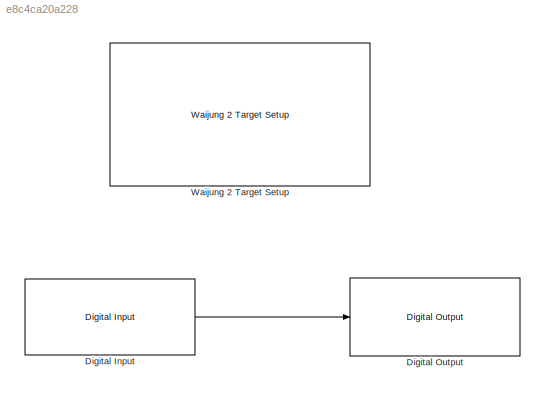
MODEL slx_e8c4ca20a228
KIND model
CONFIG AbsTol = auto
CONFIG EnableMultiTasking = on
CONFIG FixedStep = auto
CONFIG MaxStep = auto
CONFIG MinStep = auto
CONFIG RelTol = 1e-3
CONFIG SampleTimeConstraint = Unconstrained
CONFIG SolverName = FixedStepDiscrete
CONFIG StartTime = 0.0
CONFIG StopTime = 10.0
BLOCK [Reference] Digital Input  REF=esp32_io_lib/Digital Input
  Ports = [0, 1]
  SourceBlock = esp32_io_lib/Digital Input
  SourceProductName = Waijung 2 Blockset
  SourceType = esp32_digital_input
BLOCK [Reference] Digital Output  REF=esp32_io_lib/Digital Output
  Ports = [1]
  SourceBlock = esp32_io_lib/Digital Output
  SourceProductName = Waijung 2 Blockset
  SourceType = esp32_digital_output
BLOCK [Reference] Waijung 2 Target Setup  REF=esp32_device_config_lib/Waijung 2 Target Setup
  Ports = []
  SourceBlock = esp32_device_config_lib/Waijung 2 Target Setup
  SourceProductName = Waijung 2 Blockset
  SourceType = esp32_target_setup
LINE Digital Input:1 -> Digital Output:1
